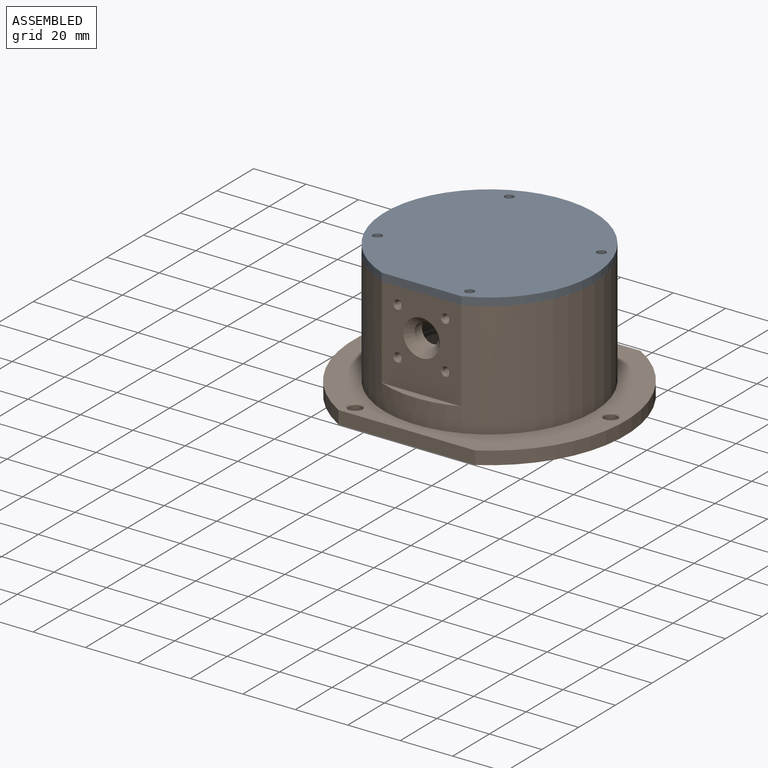
[diagram: assembled view]
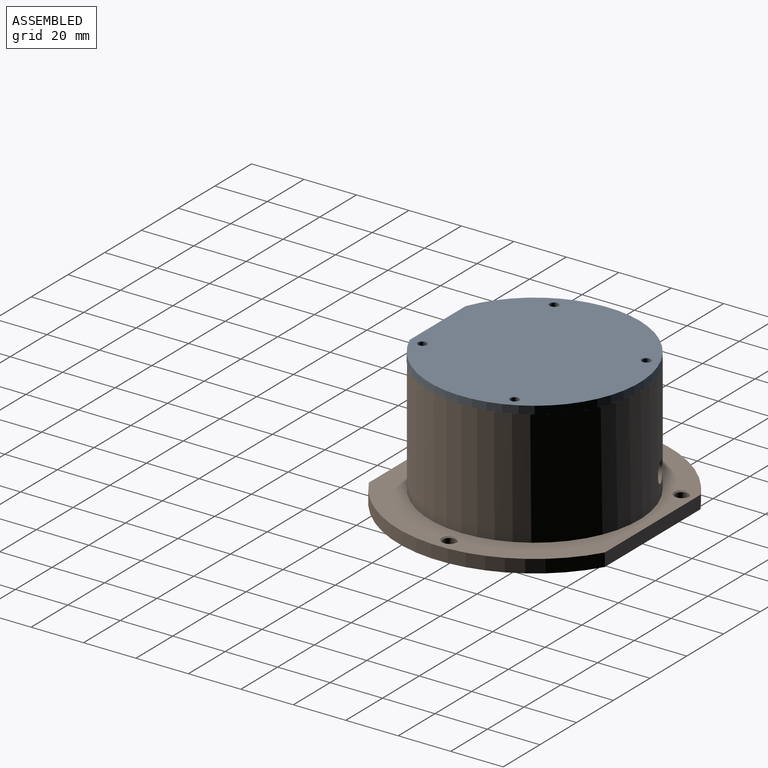
[diagram: assembled view, second angle]
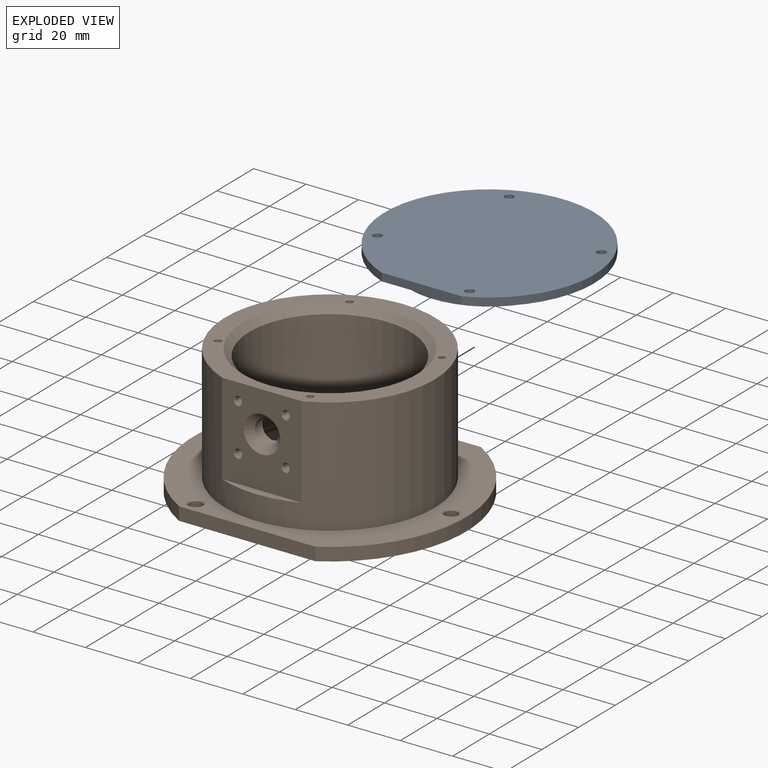
[diagram: exploded view]
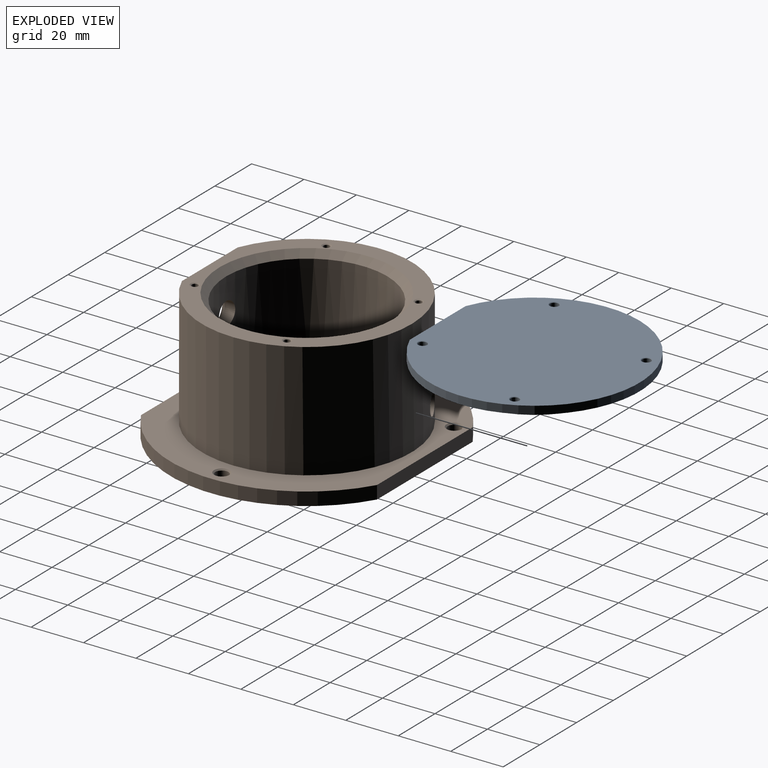
[diagram: exploded view, second angle]
ASSEMBLY  parts=2 mates=3
PART A: 16 faces, bbox 80x77x7.5 mm
  f0: cylinder r=40mm len=80mm, axis (0,0,1), area 660.4mm2, adj f5,f6,f7
  f1: plane 24x24mm, normal (0,0,-1), area 452.4mm2, adj f2
  f2: cylinder r=12mm len=24mm, axis (0,0,1), area 339.3mm2, adj f1,f3
  f3: plane 61.3x61.3mm, normal (0,0,-1), area 2498.9mm2, adj f2,f4
  f4: cylinder r=30.65mm len=61.3mm, axis (0,0,1), area 866.6mm2, adj f3,f5
  f5: plane 80x77mm, normal (0,0,-1), area 1979.8mm2, adj f0,f4,f7,f8,f9,f10,f11
  f6: plane 80x77mm, normal (0,0,1), area 4922.3mm2, adj f0,f7,f12,f13,f14,f15
  f7: plane 30.4x3mm, normal (0,-1,0), area 91.2mm2, adj f0,f5,f6
  f8: cylinder r=1.65mm len=3.3mm, axis (0,0,1), area 29mm2, adj f5,f15
  f9: cylinder r=1.65mm len=3.3mm, axis (0,0,1), area 29mm2, adj f5,f14
  f10: cylinder r=1.65mm len=3.3mm, axis (0,0,1), area 29mm2, adj f5,f13
  f11: cylinder r=1.65mm len=3.3mm, axis (0,0,1), area 29mm2, adj f5,f12
  f12: cone r=1.65mm half-angle=45deg, axis (0,0,1), area 3.1mm2, adj f6,f11
  f13: cone r=1.65mm half-angle=45deg, axis (0,0,1), area 3.1mm2, adj f6,f10
  f14: cone r=1.65mm half-angle=45deg, axis (0,0,1), area 3.1mm2, adj f6,f9
  f15: cone r=1.65mm half-angle=45deg, axis (0,0,1), area 3.1mm2, adj f6,f8
PART B: 95 faces, bbox 104x90x50 mm
  f0: cone r=2.5mm half-angle=45deg, axis (0,0,-1), area 1.1mm2, adj f40,f94
  f1: cone r=2.5mm half-angle=45deg, axis (0,0,-1), area 1.1mm2, adj f42,f92
  f2: cone r=2.5mm half-angle=45deg, axis (0,0,-1), area 1.1mm2, adj f41,f90
  f3: cylinder r=40mm len=80mm, axis (0,0,-1), area 9887.8mm2, adj f4,f5,f23,f24,f55,f59,f61
  f4: plane 80x77mm, normal (0,0,1), area 1457.8mm2, adj f3,f24,f39,f62,f65,f68,f71
  f5: plane 104x90mm, normal (0,0,1), area 2890.1mm2, adj f3,f6,f7,f21,f22,f43,f44,f45
  f6: cylinder r=52mm len=90mm, axis (0,0,-1), area 543.9mm2, adj f5,f8,f21,f22
  f7: cylinder r=52mm len=90mm, axis (0,0,-1), area 543.9mm2, adj f5,f8,f21,f22
  f8: plane 104x90mm, normal (0,0,-1), area 6539.6mm2, adj f6,f7,f17,f21,f22,f74,f75,f79
  f9: cylinder r=8mm len=16mm, axis (0,0,-1), area 125.7mm2, adj f10,f20
  f10: plane 16x16mm, normal (0,0,-1), area 201.1mm2, adj f9
  f11: plane 48x48mm, normal (0,0,1), area 1809.6mm2, adj f12
  f12: cylinder r=24mm len=48mm, axis (0,0,-1), area 331.8mm2, adj f11,f13
  f13: plane 60.3x60.3mm, normal (0,0,1), area 1027.7mm2, adj f12,f14,f52,f53,f54
  f14: cylinder r=30.15mm len=60.3mm, axis (0,0,-1), area 284.2mm2, adj f13,f15
  f15: plane 61.5x61.5mm, normal (0,0,1), area 114.8mm2, adj f14,f16
  f16: cylinder r=30.75mm len=61.5mm, axis (0,0,-1), area 6839.1mm2, adj f15,f25,f39,f56
  f17: cylinder r=20mm len=40mm, axis (0,0,-1), area 100.5mm2, adj f8,f18
  f18: plane 40x40mm, normal (0,0,-1), area 549.8mm2, adj f17,f19
  f19: cylinder r=15mm len=30mm, axis (0,0,-1), area 471.2mm2, adj f18,f20
  f20: plane 30x30mm, normal (0,0,-1), area 505.8mm2, adj f9,f19
  f21: plane 52.12x5mm, normal (0,1,0), area 260.6mm2, adj f5,f6,f7,f8
  f22: plane 52.12x5mm, normal (0,-1,0), area 260.6mm2, adj f5,f6,f7,f8
  f23: plane 30.4x3mm, normal (0,0,1), area 61.3mm2, adj f3,f24
  f24: plane 35x30.4mm, normal (0,-1,0), area 872.5mm2, adj f3,f4,f23,f34,f35,f36,f37,f38
  f25: cylinder r=4.48mm len=8.95mm, axis (0,-1,0), area 110.1mm2, adj f16,f38
  f26: cylinder r=1.25mm len=6mm, axis (0,-1,0), area 47.1mm2, adj f27,f37
  f27: cone r=0mm half-angle=59deg, axis (0,-1,0), area 5.7mm2, adj f26
  f28: cylinder r=1.25mm len=6mm, axis (0,-1,0), area 47.1mm2, adj f29,f36
  f29: cone r=0mm half-angle=59deg, axis (0,-1,0), area 5.7mm2, adj f28
  f30: cylinder r=1.25mm len=6mm, axis (0,-1,0), area 47.1mm2, adj f31,f35
  f31: cone r=0mm half-angle=59deg, axis (0,-1,0), area 5.7mm2, adj f30
  f32: cylinder r=1.25mm len=6mm, axis (0,-1,0), area 47.1mm2, adj f33,f34
  f33: cone r=0mm half-angle=59deg, axis (0,-1,0), area 5.7mm2, adj f32
  f34: cone r=1.25mm half-angle=45deg, axis (0,-1,0), area 6.7mm2, adj f24,f32
  f35: cone r=1.25mm half-angle=45deg, axis (0,-1,0), area 6.7mm2, adj f24,f30
  f36: cone r=1.25mm half-angle=45deg, axis (0,-1,0), area 6.7mm2, adj f24,f28
  f37: cone r=1.25mm half-angle=45deg, axis (0,-1,0), area 6.7mm2, adj f24,f26
  f38: cone r=4.48mm half-angle=45deg, axis (0,-1,0), area 127.2mm2, adj f24,f25
  f39: cone r=33.25mm half-angle=45deg, axis (0,0,1), area 710.9mm2, adj f4,f16
  f40: cylinder r=2.5mm len=5mm, axis (0,0,-1), area 62.8mm2, adj f0,f44
  f41: cylinder r=2.5mm len=5mm, axis (0,0,-1), area 62.8mm2, adj f2,f45
  f42: cylinder r=2.5mm len=5mm, axis (0,0,-1), area 62.8mm2, adj f1,f43
  f43: cone r=2.5mm half-angle=45deg, axis (0,0,1), area 12.2mm2, adj f5,f42
  f44: cone r=2.5mm half-angle=45deg, axis (0,0,1), area 12.2mm2, adj f5,f40
  f45: cone r=2.5mm half-angle=45deg, axis (0,0,1), area 12.2mm2, adj f5,f41
  f46: cylinder r=1.2mm len=7mm, axis (0,0,1), area 52.8mm2, adj f47,f54
  f47: cone r=0mm half-angle=59deg, axis (0,0,1), area 5.3mm2, adj f46
  f48: cylinder r=1.2mm len=7mm, axis (0,0,1), area 52.8mm2, adj f49,f53
  f49: cone r=0mm half-angle=59deg, axis (0,0,1), area 5.3mm2, adj f48
  f50: cylinder r=1.2mm len=7mm, axis (0,0,1), area 52.8mm2, adj f51,f52
  f51: cone r=0mm half-angle=59deg, axis (0,0,1), area 5.3mm2, adj f50
  f52: cone r=1.2mm half-angle=45deg, axis (0,0,1), area 2.3mm2, adj f13,f50
  f53: cone r=1.2mm half-angle=45deg, axis (0,0,1), area 2.3mm2, adj f13,f48
  f54: cone r=1.2mm half-angle=45deg, axis (0,0,1), area 2.3mm2, adj f13,f46
  f55: cylinder r=3.05mm len=7.24mm, axis (-0.83,0.56,0), area 73.6mm2, adj f3,f57
  f56: cylinder r=2.15mm len=6.9mm, axis (-0.83,0.56,0), area 72.8mm2, adj f16,f57
  f57: plane 6.1x5.06mm, normal (-0.83,0.56,0), area 14.7mm2, adj f55,f56
  f58: plane 8x7.25mm, normal (-0.42,0.91,0), area 50.3mm2, adj f59
  f59: cylinder r=4mm len=10.63mm, axis (-0.42,0.91,0), area 198.6mm2, adj f3,f58
  f60: cone r=0mm half-angle=87.5deg, axis (-1,0.04,0), area 50.3mm2, adj f61
  f61: cone r=4mm half-angle=0deg, axis (1,-0.04,0), area 198.7mm2, adj f3,f60
  f62: cone r=0mm half-angle=59deg, axis (0,0,1), area 4.7mm2, adj f4,f64
  f63: cone r=0mm half-angle=59deg, axis (0,0,1), area 5.3mm2, adj f64
  f64: cylinder r=1.2mm len=6.93mm, axis (0,0,1), area 52.2mm2, adj f62,f63
  f65: cone r=0mm half-angle=59deg, axis (0,0,1), area 4.7mm2, adj f4,f67
  f66: cone r=0mm half-angle=59deg, axis (0,0,1), area 5.3mm2, adj f67
  f67: cylinder r=1.2mm len=6.93mm, axis (0,0,1), area 52.2mm2, adj f65,f66
  f68: cone r=0mm half-angle=59deg, axis (0,0,1), area 4.7mm2, adj f4,f70
  f69: cone r=0mm half-angle=59deg, axis (0,0,1), area 5.3mm2, adj f70
  f70: cylinder r=1.2mm len=6.93mm, axis (0,0,1), area 52.2mm2, adj f68,f69
  f71: cone r=0mm half-angle=59deg, axis (0,0,1), area 4.7mm2, adj f4,f73
  f72: cone r=0mm half-angle=59deg, axis (0,0,1), area 5.3mm2, adj f73
  f73: cylinder r=1.2mm len=6.93mm, axis (0,0,1), area 52.2mm2, adj f71,f72
  f74: cylinder r=3.3mm len=6.6mm, axis (0,0,-1), area 0mm2, adj f8,f75
  f75: cone r=0mm half-angle=59deg, axis (0,0,-1), area 9.9mm2, adj f8,f74,f78
  f76: cone r=0mm half-angle=59deg, axis (0,0,-1), area 25.3mm2, adj f77
  f77: cylinder r=2.62mm len=13.75mm, axis (0,0,-1), area 226.8mm2, adj f76,f78
  f78: cone r=2.62mm half-angle=45deg, axis (0,0,-1), area 5.8mm2, adj f75,f77
  f79: cylinder r=3.3mm len=6.6mm, axis (0,0,-1), area 0mm2, adj f8,f80
  f80: cone r=0mm half-angle=59deg, axis (0,0,-1), area 9.9mm2, adj f8,f79,f83
  f81: cone r=0mm half-angle=59deg, axis (0,0,-1), area 25.3mm2, adj f82
  f82: cylinder r=2.62mm len=13.75mm, axis (0,0,-1), area 226.8mm2, adj f81,f83
  f83: cone r=2.62mm half-angle=45deg, axis (0,0,-1), area 5.8mm2, adj f80,f82
  f84: cylinder r=3.3mm len=6.6mm, axis (0,0,-1), area 0mm2, adj f8,f85
  f85: cone r=0mm half-angle=59deg, axis (0,0,-1), area 9.9mm2, adj f8,f84,f88
  f86: cone r=0mm half-angle=59deg, axis (0,0,-1), area 25.3mm2, adj f87
  f87: cylinder r=2.62mm len=13.75mm, axis (0,0,-1), area 226.8mm2, adj f86,f88
  f88: cone r=2.62mm half-angle=45deg, axis (0,0,-1), area 5.8mm2, adj f85,f87
  f89: cylinder r=3.3mm len=6.6mm, axis (0,0,-1), area 0mm2, adj f8,f90
  f90: cone r=0mm half-angle=59deg, axis (0,0,-1), area 16.1mm2, adj f2,f8,f89
  f91: cylinder r=3.3mm len=6.6mm, axis (0,0,-1), area 0mm2, adj f8,f92
  f92: cone r=0mm half-angle=59deg, axis (0,0,-1), area 16.1mm2, adj f1,f8,f91
  f93: cylinder r=3.3mm len=6.6mm, axis (0,0,-1), area 0mm2, adj f8,f94
  f94: cone r=0mm half-angle=59deg, axis (0,0,-1), area 16.1mm2, adj f0,f8,f93
PLACE A at identity
PLACE B at identity fixed
MATE planar B.f24 <-> A.f7  axis (0,-1,0) through (0,-37,6.29)mm
MATE cylindrical B.f3 <-> A.f0  axis (0,0,-1) through (0,0,3.83)mm
MATE planar A.f1 <-> B.f4  axis (0,0,-1) through (0,1.18,24.23)mm
